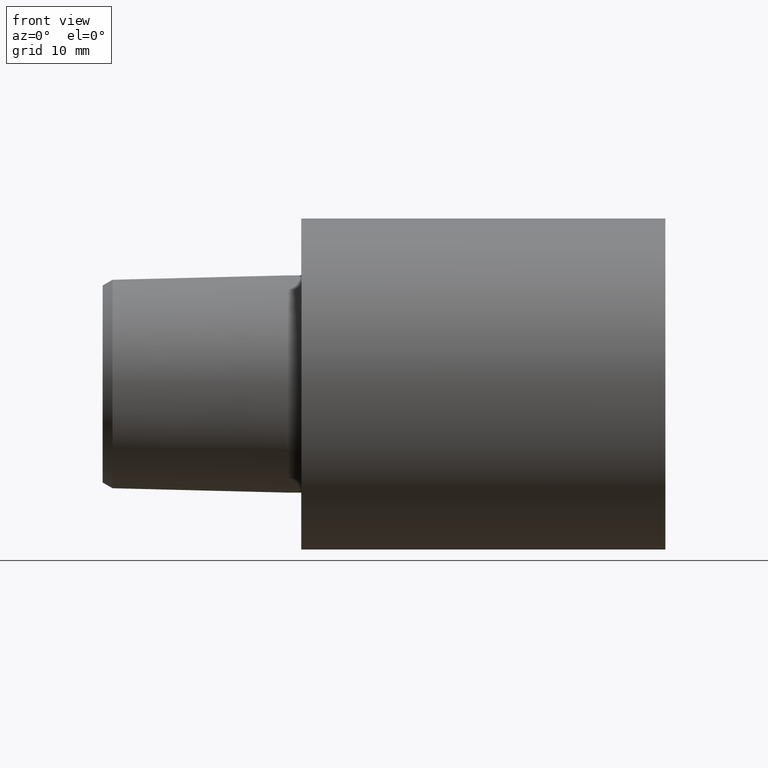
[diagram: clean part render]
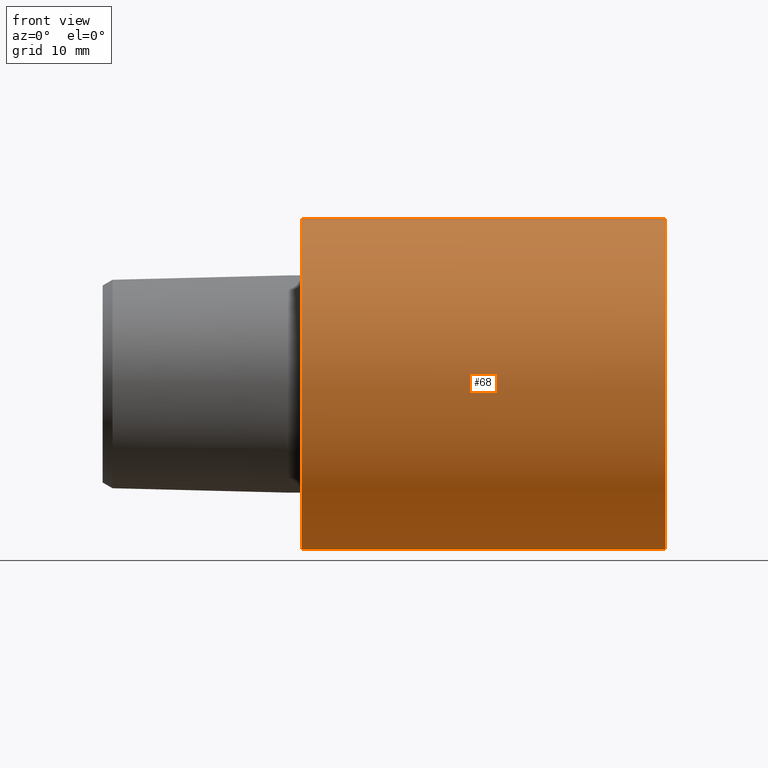
[diagram: same view with one face highlighted and labeled with its STEP entity id]
A machine part, front view. The second image highlights one B-rep face of the part: STEP entity #68.
In plain terms, the highlighted cylindrical surface (partial cylindrical patch) has radius 25 mm, axis along (1, 0, 0).
Its self-contained STEP definition (entity closure, byte-faithful):
#5 = DIRECTION ( 'NONE',  ( 0.000000000000000000, 0.000000000000000000, -1.000000000000000000 ) ) ;
#6 = CARTESIAN_POINT ( 'NONE',  ( 0.000000000000000000, 0.000000000000000000, -24.99999997449999967 ) ) ;
#32 = DIRECTION ( 'NONE',  ( 1.000000000000000000, 0.000000000000000000, 0.000000000000000000 ) ) ;
#61 = CYLINDRICAL_SURFACE ( 'NONE', #322, 24.99999997449999967 ) ;
#68 = ADVANCED_FACE ( 'NONE', ( #136 ), #61, .T. ) ;
#71 = VERTEX_POINT ( 'NONE', #108 ) ;
#72 = DIRECTION ( 'NONE',  ( 0.000000000000000000, 0.000000000000000000, -1.000000000000000000 ) ) ;
#74 = EDGE_LOOP ( 'NONE', ( #206, #261, #267, #259 ) ) ;
#79 = EDGE_CURVE ( 'NONE', #283, #118, #265, .T. ) ;
#85 = AXIS2_PLACEMENT_3D ( 'NONE', #202, #316, #72 ) ;
#108 = CARTESIAN_POINT ( 'NONE',  ( 54.99999994390000069, 0.000000000000000000, -24.99999997449999967 ) ) ;
#118 = VERTEX_POINT ( 'NONE', #277 ) ;
#133 = CARTESIAN_POINT ( 'NONE',  ( 54.99999994390000069, 3.061616994745535943E-15, 24.99999997449999967 ) ) ;
#136 = FACE_OUTER_BOUND ( 'NONE', #74, .T. ) ;
#150 = CARTESIAN_POINT ( 'NONE',  ( 54.99999994390000069, 0.000000000000000000, 0.000000000000000000 ) ) ;
#198 = AXIS2_PLACEMENT_3D ( 'NONE', #353, #351, #230 ) ;
#202 = CARTESIAN_POINT ( 'NONE',  ( 0.000000000000000000, 0.000000000000000000, 0.000000000000000000 ) ) ;
#206 = ORIENTED_EDGE ( 'NONE', *, *, #79, .F. ) ;
#215 = CIRCLE ( 'NONE', #85, 24.99999997449999967 ) ;
#219 = VECTOR ( 'NONE', #341, 1000.000000000000000 ) ;
#221 = LINE ( 'NONE', #282, #219 ) ;
#230 = DIRECTION ( 'NONE',  ( 0.000000000000000000, 0.000000000000000000, -1.000000000000000000 ) ) ;
#231 = VECTOR ( 'NONE', #326, 1000.000000000000000 ) ;
#259 = ORIENTED_EDGE ( 'NONE', *, *, #328, .F. ) ;
#261 = ORIENTED_EDGE ( 'NONE', *, *, #304, .T. ) ;
#264 = EDGE_CURVE ( 'NONE', #345, #71, #221, .T. ) ;
#265 = LINE ( 'NONE', #133, #231 ) ;
#267 = ORIENTED_EDGE ( 'NONE', *, *, #264, .T. ) ;
#277 = CARTESIAN_POINT ( 'NONE',  ( 54.99999994390000069, 3.061616994745535943E-15, 24.99999997449999967 ) ) ;
#282 = CARTESIAN_POINT ( 'NONE',  ( 54.99999994390000069, 0.000000000000000000, -24.99999997449999967 ) ) ;
#283 = VERTEX_POINT ( 'NONE', #286 ) ;
#286 = CARTESIAN_POINT ( 'NONE',  ( 0.000000000000000000, 3.061616994745535943E-15, 24.99999997449999967 ) ) ;
#303 = CIRCLE ( 'NONE', #198, 24.99999997449999967 ) ;
#304 = EDGE_CURVE ( 'NONE', #283, #345, #215, .T. ) ;
#316 = DIRECTION ( 'NONE',  ( 1.000000000000000000, 0.000000000000000000, 0.000000000000000000 ) ) ;
#322 = AXIS2_PLACEMENT_3D ( 'NONE', #150, #32, #5 ) ;
#326 = DIRECTION ( 'NONE',  ( 1.000000000000000000, 0.000000000000000000, 0.000000000000000000 ) ) ;
#328 = EDGE_CURVE ( 'NONE', #118, #71, #303, .T. ) ;
#341 = DIRECTION ( 'NONE',  ( 1.000000000000000000, 0.000000000000000000, 0.000000000000000000 ) ) ;
#345 = VERTEX_POINT ( 'NONE', #6 ) ;
#351 = DIRECTION ( 'NONE',  ( 1.000000000000000000, 0.000000000000000000, 0.000000000000000000 ) ) ;
#353 = CARTESIAN_POINT ( 'NONE',  ( 54.99999994390000069, 0.000000000000000000, 0.000000000000000000 ) ) ;